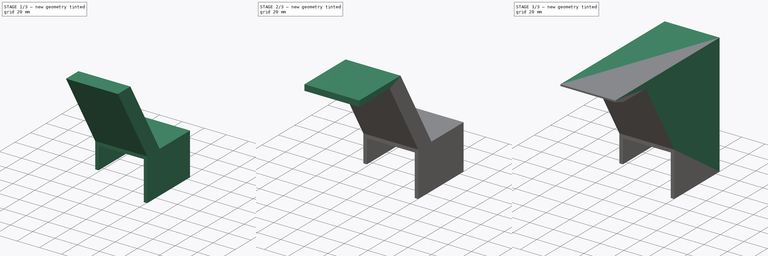
[diagram: build sequence overview — one tinted view per stage of 3, left to right]
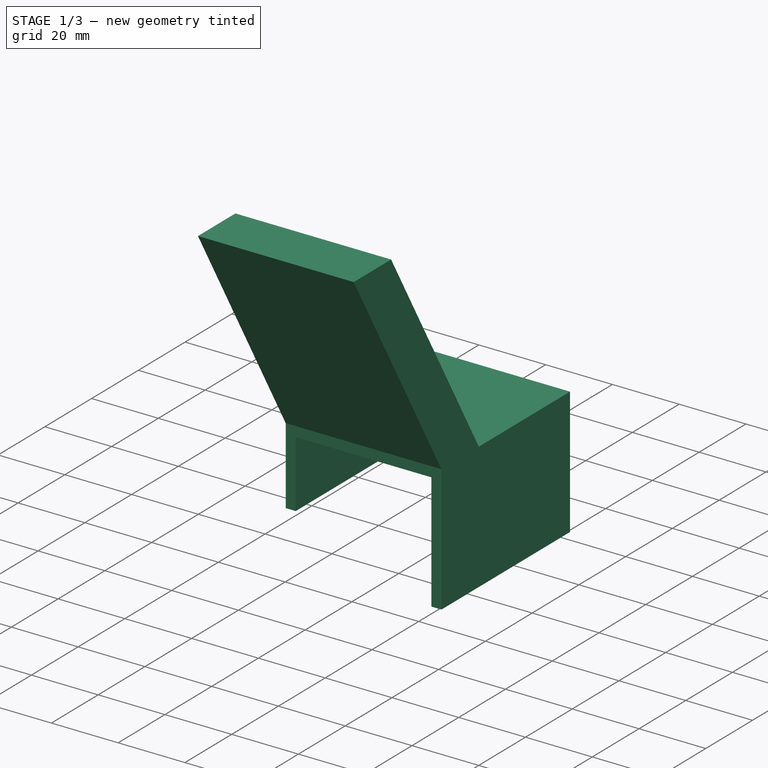
[diagram: stage 1 of 3 — iso view after this stage's code; geometry added in this stage tinted green]
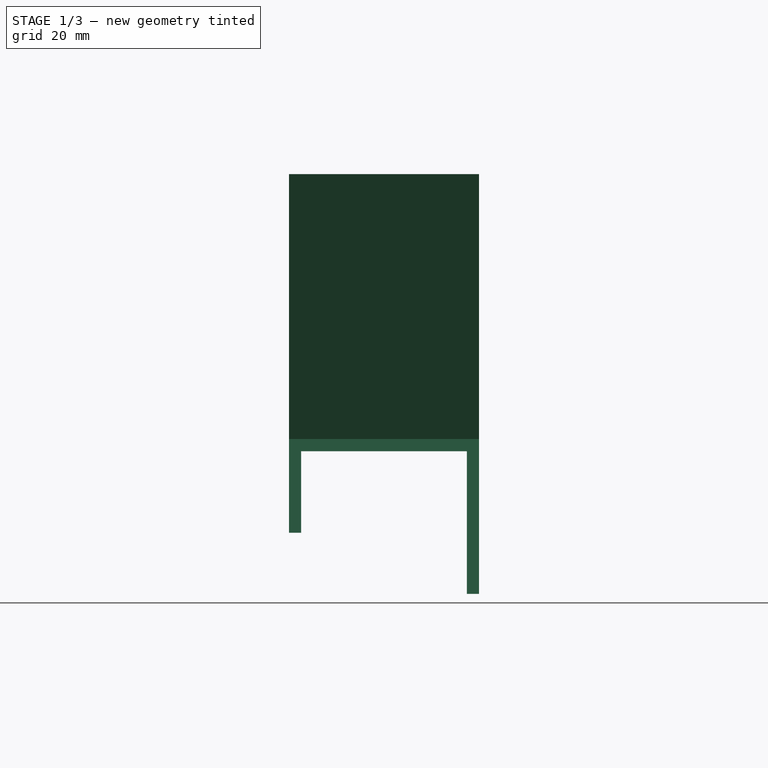
[diagram: stage 1 of 3 — front view after this stage's code; geometry added in this stage tinted green]
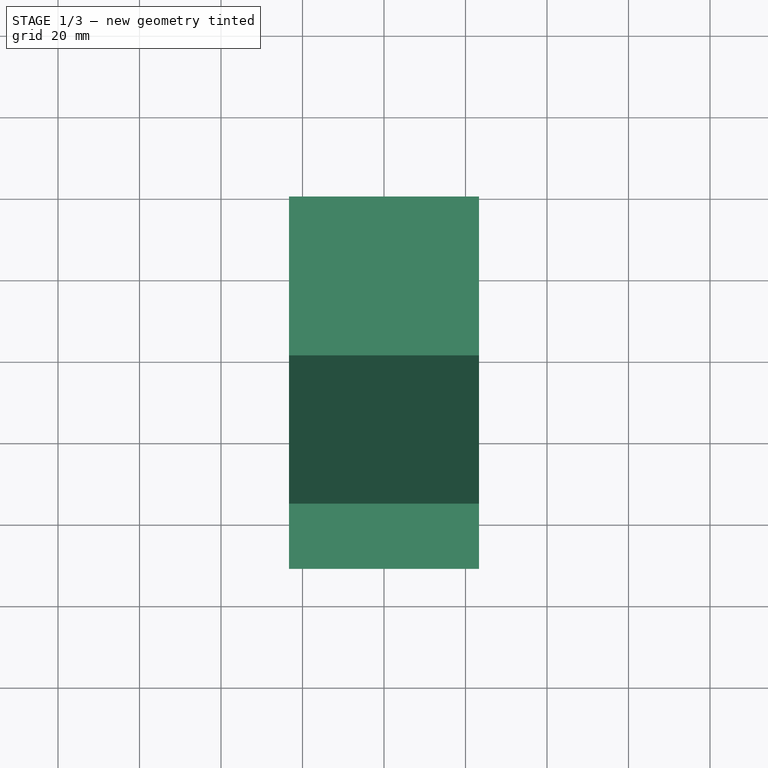
[diagram: stage 1 of 3 — top view after this stage's code; geometry added in this stage tinted green]
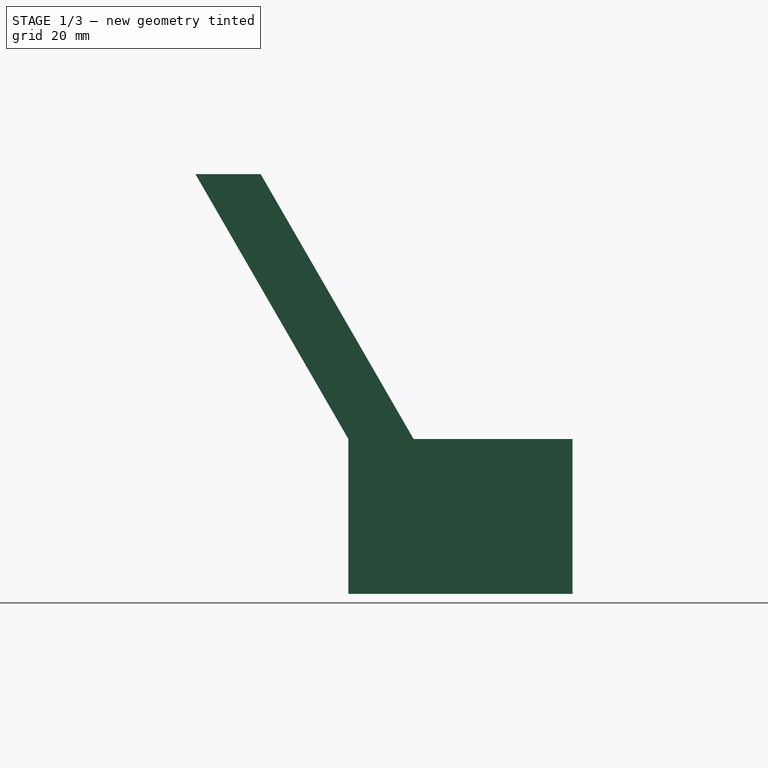
[diagram: stage 1 of 3 — right view after this stage's code; geometry added in this stage tinted green]
FCSTD DOCUMENT  (FreeCAD 1.0R39285 (Git))
Label: Подставка для ножей
License: All rights reserved
LicenseURL: https://en.wikipedia.org/wiki/All_rights_reserved
objects: Sketcher::SketchObject×5, PartDesign::Pad×4, PartDesign::Plane×1, PartDesign::Chamfer×1, PartDesign::Body×1, Measure::MeasureDistance×1, App::DocumentObjectGroup×1
note: 27 computed .brp shape members not serialized (recipe doc carries the construction recipe); baked Part::Feature solids carry a one-line shape summary decoded from their .brp

FEATURE [Sketcher::SketchObject] Sketch
  ArcFitTolerance = 1e-06
  AttachmentSupport = -> [XZ_Plane]
  FullyConstrained = true
  MakeInternals = false
  MapMode = 5
  Placement = pos=(0,0,0) rot=(1,0,0;1.5708rad)
  sketch-geometry (11):
    g0: LineSegment StartX=-23.325 StartY=3 StartZ=0 EndX=-23.325 EndY=-20 EndZ=0
    g1: LineSegment StartX=-23.325 StartY=-20 StartZ=0 EndX=-20.325 EndY=-20 EndZ=0
    g2: LineSegment StartX=-20.325 StartY=-20 StartZ=0 EndX=-20.325 EndY=0 EndZ=0
    g3: LineSegment StartX=-20.325 StartY=0 StartZ=0 EndX=20.325 EndY=0 EndZ=0
    g4: LineSegment StartX=20.325 StartY=0 StartZ=0 EndX=20.325 EndY=-35 EndZ=0
    g5: LineSegment StartX=20.325 StartY=-35 StartZ=0 EndX=23.325 EndY=-35 EndZ=0
    g6: LineSegment StartX=23.325 StartY=-35 StartZ=0 EndX=23.325 EndY=3 EndZ=0
    g7: LineSegment StartX=23.325 StartY=3 StartZ=0 EndX=-23.325 EndY=3 EndZ=0
    g8: LineSegment [constr] StartX=-23.325 StartY=0 StartZ=0 EndX=-20.325 EndY=0 EndZ=0
    g9: LineSegment [constr] StartX=-20.325 StartY=0 StartZ=0 EndX=-20.325 EndY=3 EndZ=0
    g10: GeomPoint [constr] X=0 Y=0 Z=0
  constraints (30):
    c: Coincident(g0,g1)
    c: Coincident(g1,g2)
    c: Coincident(g2,g3)
    c: Horizontal(g3)
    c: Coincident(g3,g4)
    c: Coincident(g4,g5)
    c: Horizontal(g5)
    c: Coincident(g5,g6)
    c: Coincident(g6,g7)
    c: Coincident(g7,g0)
    c: Horizontal(g7)
    c: DistanceX(g2,g3) = 40.65
    c: Vertical(g2)
    c: Vertical(g0)
    c: Vertical(g4)
    c: Vertical(g6)
    c: PointOnObject(g8,g0)
    c: Coincident(g8,g2)
    c: Horizontal(g8)
    c: Coincident(g8,g9)
    c: PointOnObject(g9,g7)
    c: Vertical(g9)
    c: Equal(g9,g8)
    c: DistanceY(g9,g9) = 3
    c: DistanceY(g2,g2) = 20
    c: Horizontal(g1)
    c: Equal(g1,g5)
    c: Symmetric(g2,g3,g10)
    c: Coincident(g10,g-1)
    c: DistanceY(g4,g4) = 35
FEATURE [PartDesign::Pad] Pad
  Direction = (0,-1,2e-16)
  Length = 55
  Length2 = 10
  Placement = pos=(0,0,0) rot=(1,0,0;1.5708rad)
  Profile = -> Sketch
  ReferenceAxis = -> Sketch [N_Axis]
  Refine = true
  Suppressed = false
  Type = 0
FEATURE [Sketcher::SketchObject] Sketch001
  ArcFitTolerance = 1e-06
  AttachmentSupport = -> [Pad]
  ExternalGeometry = -> [Pad]
  FullyConstrained = true
  MakeInternals = false
  MapMode = 5
  Placement = pos=(-23.325,0,0) rot=(0.707107,0,-0.707107;3.14159rad)
  sketch-geometry (5):
    g0: LineSegment [constr] StartX=-3 StartY=-7e-16 StartZ=0 EndX=-3 EndY=55 EndZ=0
    g1: LineSegment StartX=-3 StartY=39 StartZ=0 EndX=-3 EndY=55 EndZ=0
    g2: LineSegment StartX=-3 StartY=39 StartZ=0 EndX=-68 EndY=76.5278 EndZ=0
    g3: LineSegment StartX=-68 StartY=76.5278 StartZ=0 EndX=-68 EndY=92.5278 EndZ=0
    g4: LineSegment StartX=-68 StartY=92.5278 StartZ=0 EndX=-3 EndY=55 EndZ=0
  constraints (13):
    c: Coincident(g0,g-4)
    c: Coincident(g0,g-3)
    c: Coincident(g1,g0)
    c: PointOnObject(g1,g0)
    c: Coincident(g1,g2)
    c: Coincident(g2,g3)
    c: Coincident(g3,g4)
    c: Coincident(g4,g0)
    c: Parallel(g2,g4)
    c: Vertical(g3)
    c: DistanceY(g3,g3) = 16
    c: DistanceX(g4,g4) = 65
    c: Angle(g0,g4) = 1.0472
FEATURE [PartDesign::Pad] Pad001
  BaseFeature = -> Pad
  Direction = (-1,0,-2e-16)
  Length = 10
  Length2 = 10
  Placement = pos=(0,0,0) rot=(1,0,0;1.5708rad)
  Profile = -> Sketch001
  ReferenceAxis = -> Sketch001 [N_Axis]
  Refine = true
  Suppressed = false
  Type = 3
  UpToFace = -> Pad [Face7]
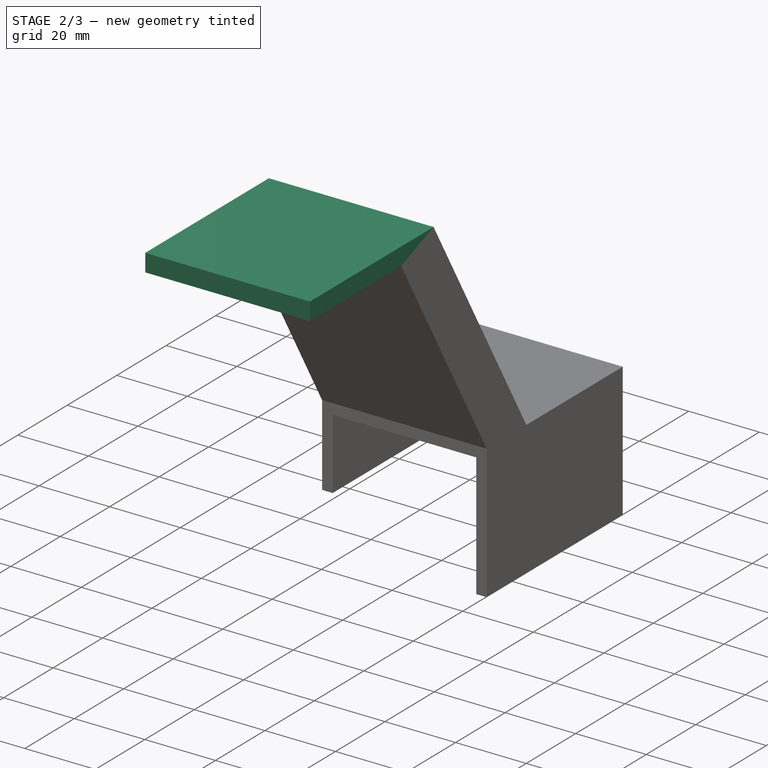
[diagram: stage 2 of 3 — iso view after this stage's code; geometry added in this stage tinted green]
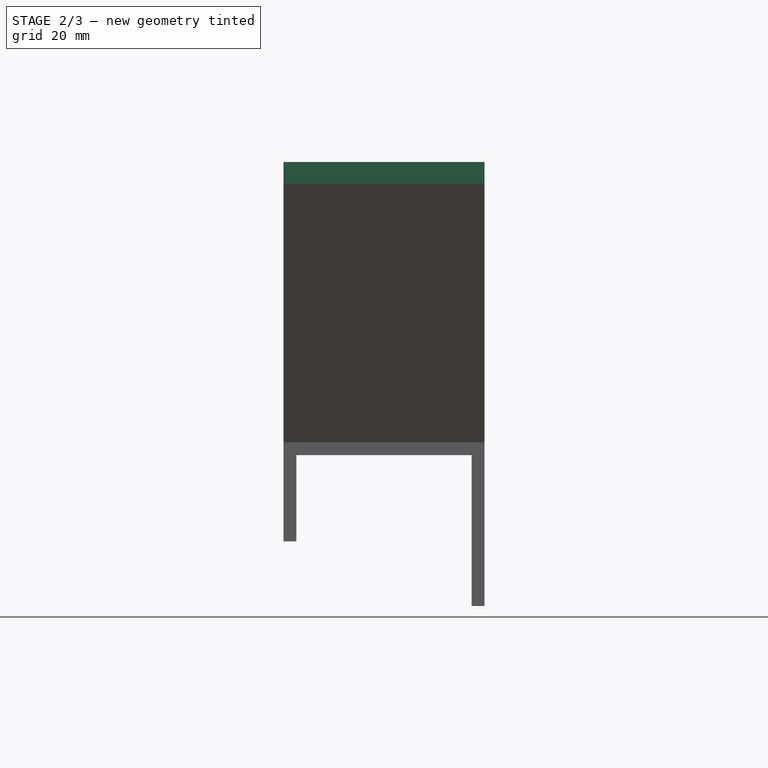
[diagram: stage 2 of 3 — front view after this stage's code; geometry added in this stage tinted green]
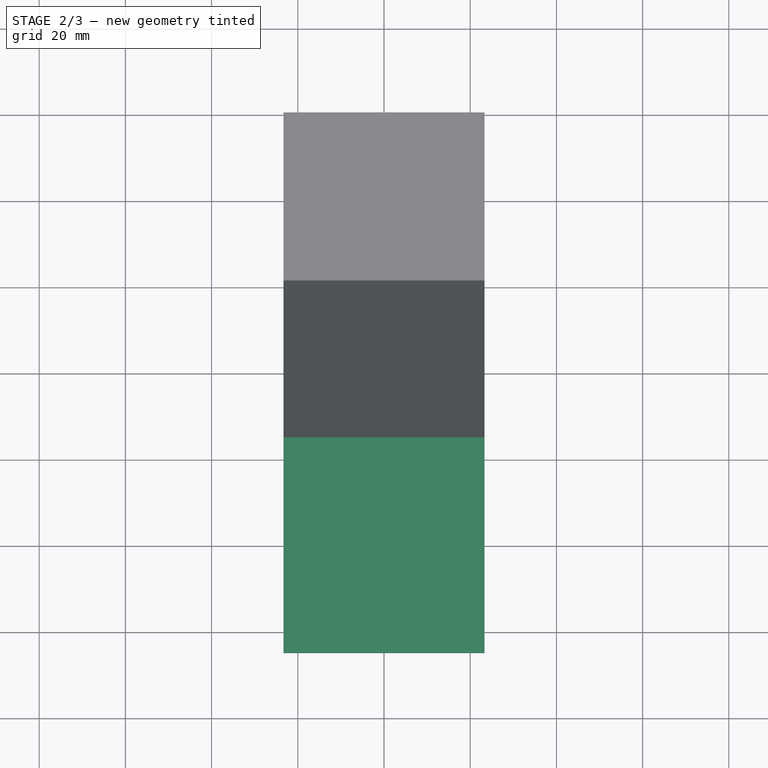
[diagram: stage 2 of 3 — top view after this stage's code; geometry added in this stage tinted green]
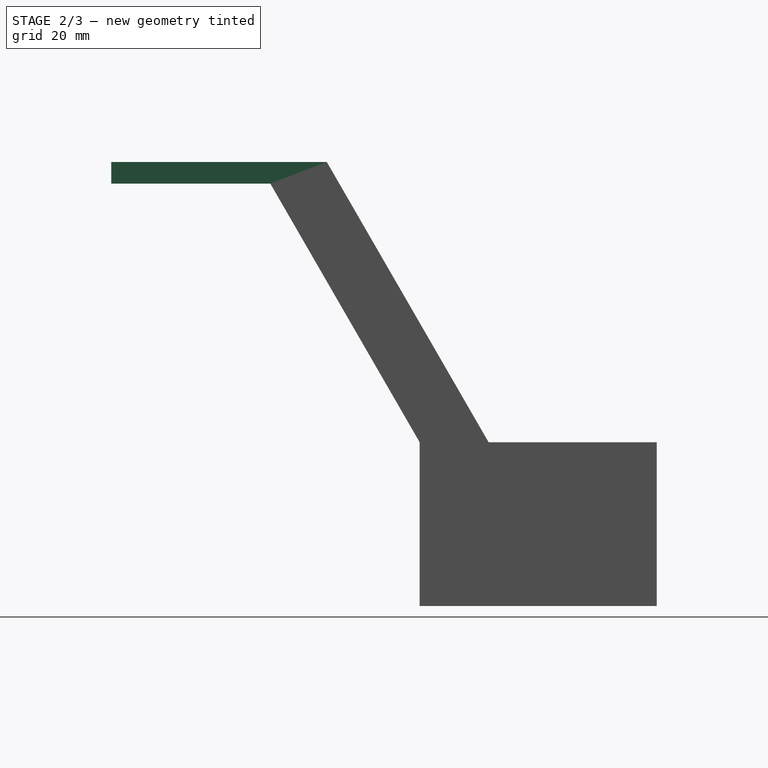
[diagram: stage 2 of 3 — right view after this stage's code; geometry added in this stage tinted green]
FEATURE [Sketcher::SketchObject] Sketch002
  ArcFitTolerance = 1e-06
  AttachmentSupport = -> [Pad001]
  ExternalGeometry = -> [Pad001]
  FullyConstrained = true
  MakeInternals = false
  MapMode = 5
  Placement = pos=(-23.325,0,0) rot=(0.707107,0,-0.707107;3.14159rad)
FEATURE [Sketcher::SketchObject] Sketch003
  ArcFitTolerance = 1e-06
  AttachmentSupport = -> [Pad001]
  ExternalGeometry = -> [Pad001]
  FullyConstrained = true
  MakeInternals = false
  MapMode = 5
  Placement = pos=(-23.325,0,0) rot=(0.707107,0,-0.707107;3.14159rad)
  sketch-geometry (4):
    g0: LineSegment StartX=-63 StartY=126.528 StartZ=0 EndX=-63 EndY=76.5278 EndZ=0
    g1: LineSegment StartX=-63 StartY=76.5278 StartZ=0 EndX=-68 EndY=76.5278 EndZ=0
    g2: LineSegment StartX=-68 StartY=76.5278 StartZ=0 EndX=-68 EndY=126.528 EndZ=0
    g3: LineSegment StartX=-68 StartY=126.528 StartZ=0 EndX=-63 EndY=126.528 EndZ=0
  constraints (11):
    c: Coincident(g0,g1)
    c: Coincident(g1,g2)
    c: Coincident(g2,g3)
    c: Coincident(g3,g0)
    c: Vertical(g0)
    c: Vertical(g2)
    c: Horizontal(g1)
    c: Horizontal(g3)
    c: Coincident(g-3,g1)
    c: DistanceY(g2,g2) = 50
    c: DistanceX(g3,g3) = 5
FEATURE [PartDesign::Pad] Pad002
  BaseFeature = -> Pad001
  Direction = (-1,0,-2e-16)
  Length = 10
  Length2 = 10
  Placement = pos=(0,0,0) rot=(1,0,0;1.5708rad)
  Profile = -> Sketch003
  ReferenceAxis = -> Sketch003 [N_Axis]
  Refine = true
  Reversed = true
  Suppressed = false
  Type = 3
  UpToFace = -> Pad001 [Face13]
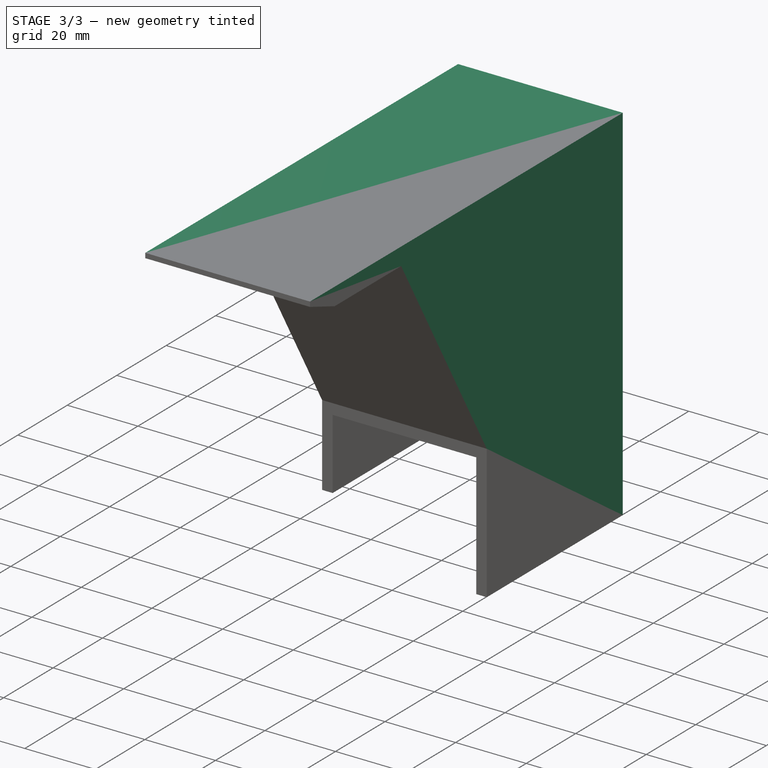
[diagram: stage 3 of 3 — iso view after this stage's code; geometry added in this stage tinted green]
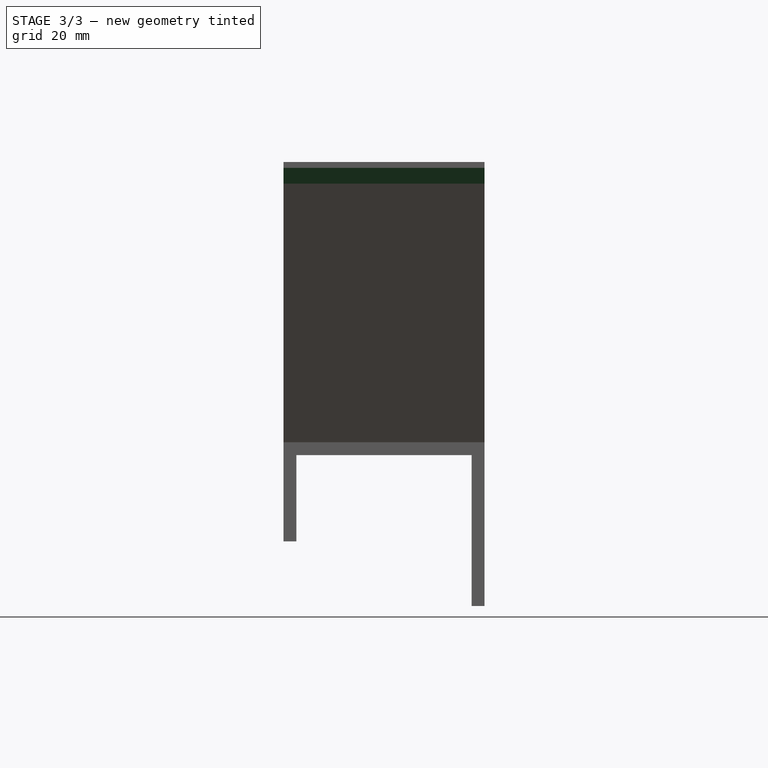
[diagram: stage 3 of 3 — front view after this stage's code; geometry added in this stage tinted green]
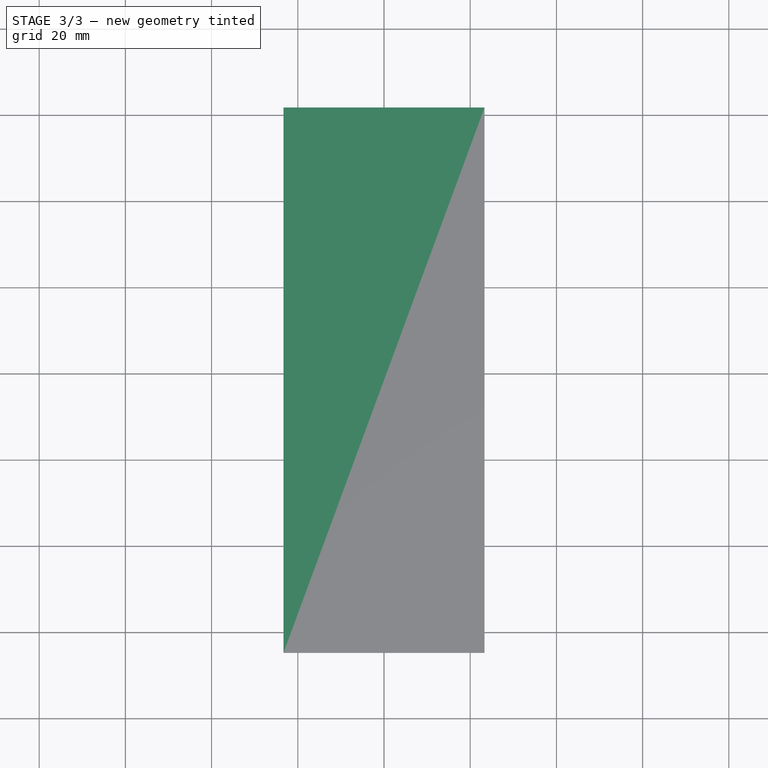
[diagram: stage 3 of 3 — top view after this stage's code; geometry added in this stage tinted green]
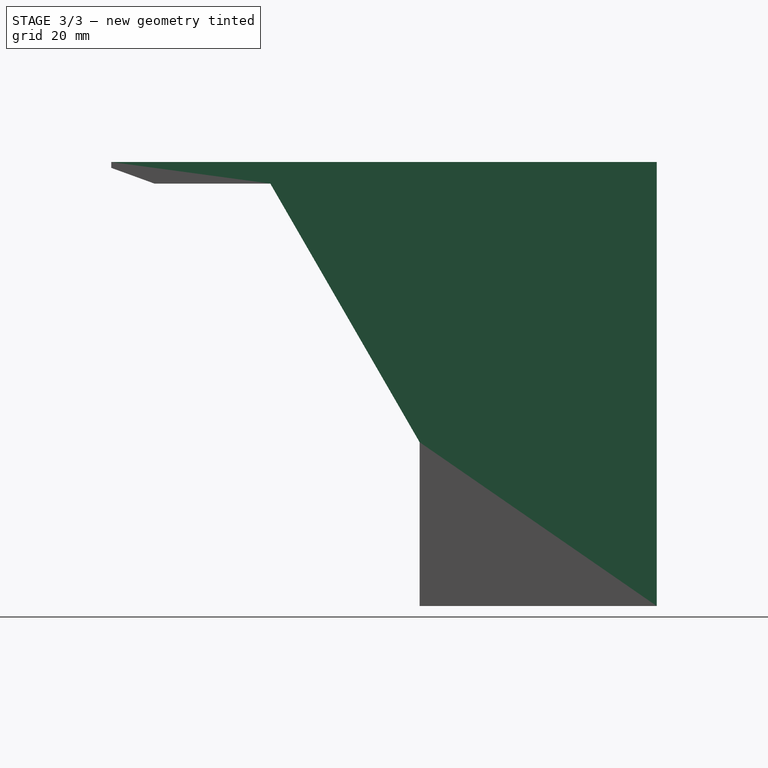
[diagram: stage 3 of 3 — right view after this stage's code; geometry added in this stage tinted green]
FEATURE [PartDesign::Plane] DatumPlane
  AttachmentSupport = -> [Pad002]
  Length = 60
  MapMode = 5
  Placement = pos=(-23.325,0,0) rot=(0.707107,0,-0.707107;3.14159rad)
  ResizeMode = 0
  Width = 60
FEATURE [Sketcher::SketchObject] Sketch004
  ArcFitTolerance = 1e-06
  AttachmentSupport = -> [DatumPlane]
  ExternalGeometry = -> [Pad002]
  FullyConstrained = true
  MakeInternals = false
  MapMode = 5
  Placement = pos=(-23.325,0,0) rot=(0.707107,0,-0.707107;3.14159rad)
  sketch-geometry (4):
    g0: LineSegment StartX=-68 StartY=-7e-16 StartZ=0 EndX=-3 EndY=-7e-16 EndZ=0
    g1: LineSegment StartX=-3 StartY=-7e-16 StartZ=0 EndX=-3 EndY=39 EndZ=0
    g2: LineSegment StartX=-3 StartY=39 StartZ=0 EndX=-68 EndY=76.5278 EndZ=0
    g3: LineSegment StartX=-68 StartY=-7e-16 StartZ=0 EndX=-68 EndY=76.5278 EndZ=0
  constraints (9):
    c: Coincident(g0,g1)
    c: Coincident(g1,g2)
    c: Horizontal(g0)
    c: Coincident(g1,g-4)
    c: Coincident(g2,g-5)
    c: Coincident(g0,g-3)
    c: Coincident(g3,g0)
    c: Coincident(g3,g2)
    c: Vertical(g3)
FEATURE [PartDesign::Pad] Pad003
  BaseFeature = -> Pad002
  Direction = (-1,0,-2e-16)
  Length = 46
  Length2 = 10
  Placement = pos=(0,0,0) rot=(1,0,0;1.5708rad)
  Profile = -> Sketch004
  ReferenceAxis = -> Sketch004 [N_Axis]
  Refine = true
  Reversed = true
  Suppressed = false
  Type = 3
  UpToFace = -> Pad002 [Face14]
FEATURE [PartDesign::Chamfer] Chamfer
  Angle = 20
  Base = -> Pad003 [Edge19]
  BaseFeature = -> Pad003
  ChamferType = 2
  FlipDirection = false
  Placement = pos=(0,0,0) rot=(1,0,0;1.5708rad)
  Refine = true
  Size = 10
  Size2 = 1
  SupportTransform = false
  Suppressed = false
  UseAllEdges = false
FEATURE [PartDesign::Body] Body  label="Тело"
  AllowCompound = false
  Group = -> [DatumPlane,Sketch,Pad,Sketch001,Pad001,Sketch002,Sketch003,Pad002,Sketch004,Pad003,Chamfer]
  Origin = -> Origin
  Tip = -> Chamfer
FEATURE [Measure::MeasureDistance] Distance  label="Distance: 1,36 mm"
  Distance = 1.3603
  DistanceX = 0
  DistanceY = 1.42e-14
  DistanceZ = 1.3603
  Element1 = -> Body [Chamfer.Edge12]
  Element2 = -> Body [Chamfer.Edge21]
  Position1 = (-23.325,-126.528,66.6397)
  Position2 = (-23.325,-126.528,68)
FEATURE [App::DocumentObjectGroup] Measurements
  Group = -> [Distance]
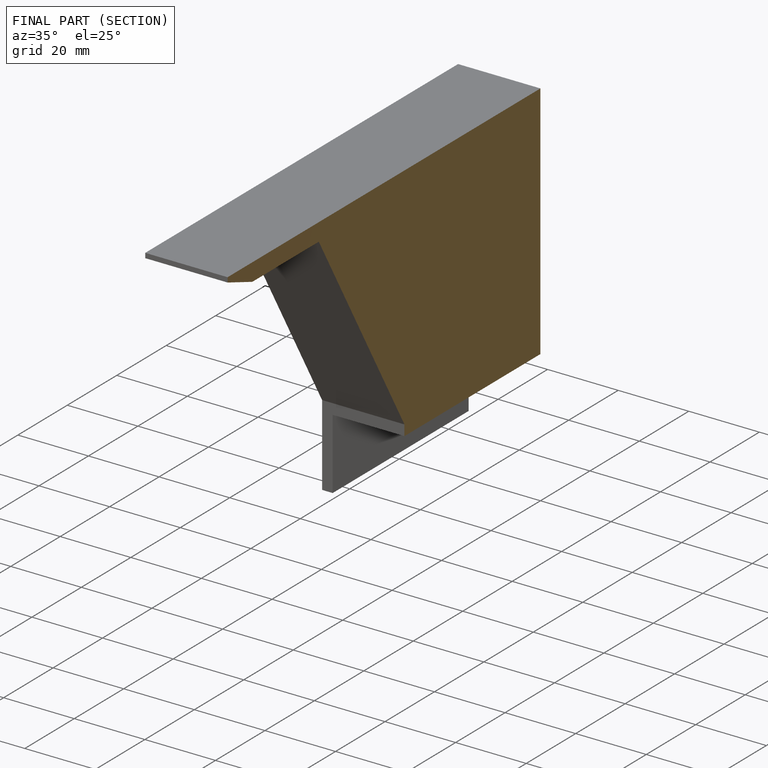
[diagram: finished part — half-section view (interior)]
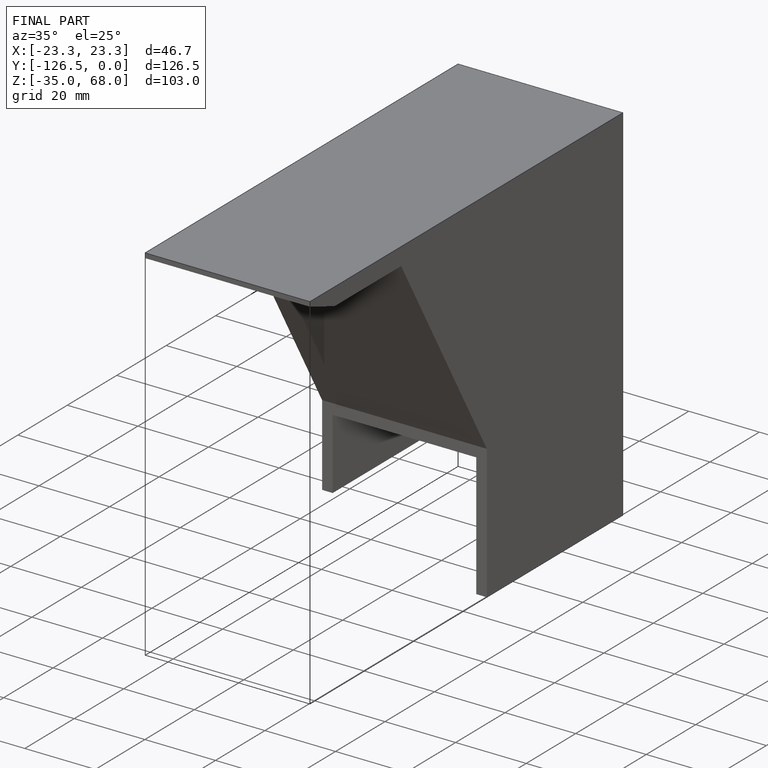
[diagram: finished part — iso view with bounding-box wireframe]
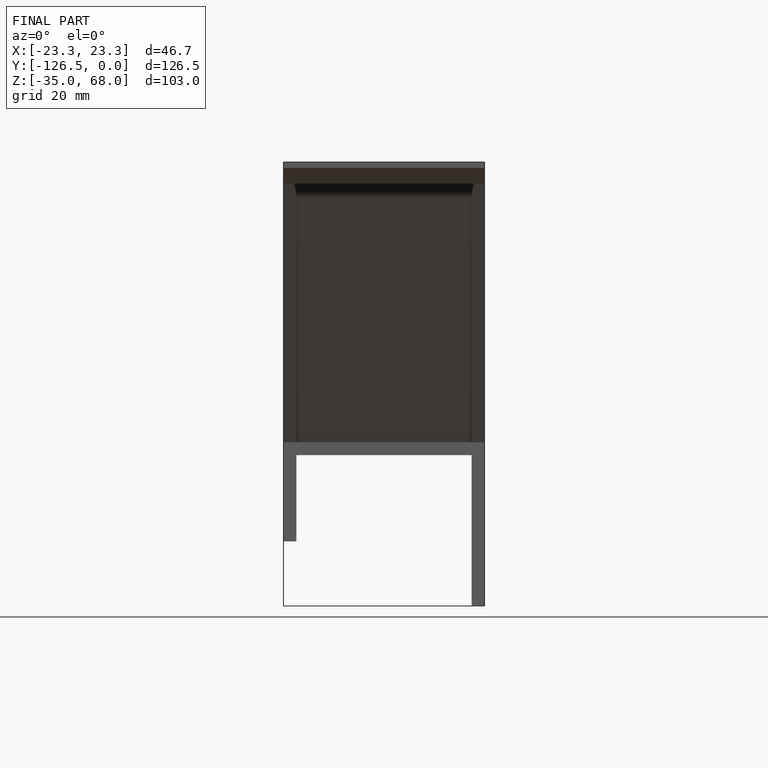
[diagram: finished part — front view with bounding-box wireframe]
